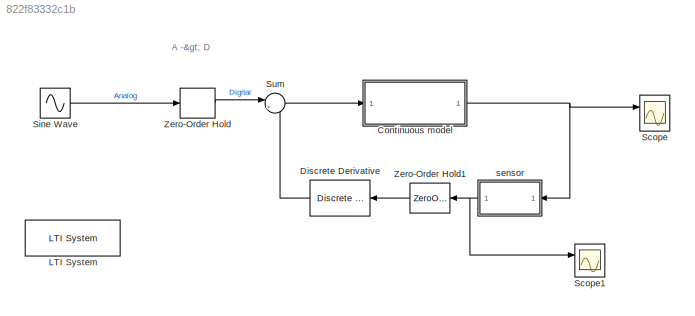
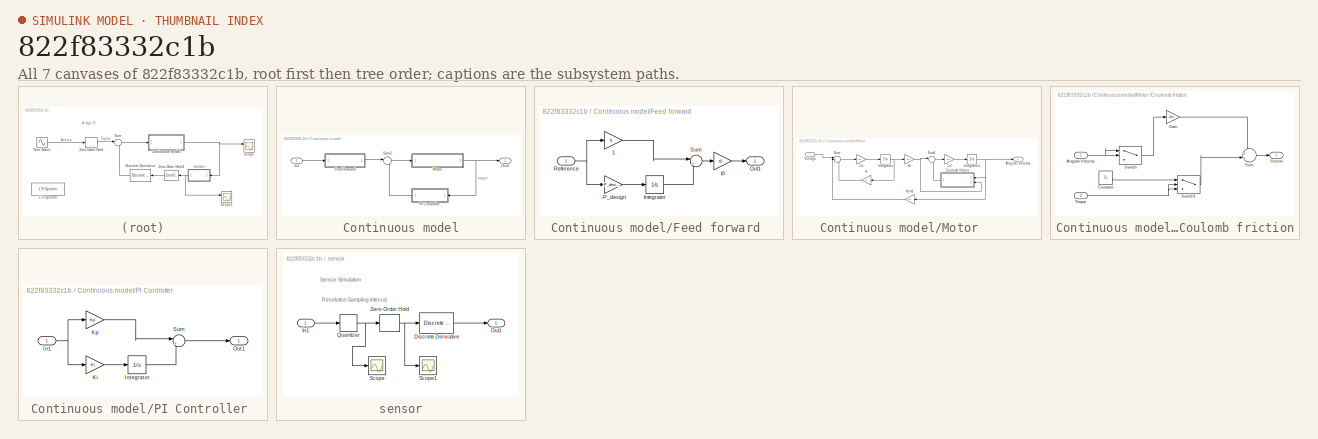
[diagram: thumbnail index - all 7 canvases of the model, root first then tree order]
MODEL slx_822f83332c1b
KIND model
CONFIG AbsTol = auto
CONFIG EnableMultiTasking = off
CONFIG FixedStep = auto
CONFIG MaxStep = auto
CONFIG MinStep = auto
CONFIG RelTol = 1e-3
CONFIG SampleTimeConstraint = Unconstrained
CONFIG Solver = VariableStepAuto
CONFIG SolverName = VariableStepAuto
CONFIG StartTime = 0.0
CONFIG StopTime = 10.0
BLOCK [SubSystem] Continuous model
  Ports = [1, 1]
  RequestExecContextInheritance = off
  Variant = off
BLOCK [SubSystem] Continuous model/Feed forward 
  Ports = [1, 1]
  RequestExecContextInheritance = off
  Variant = off
BLOCK [Gain] Continuous model/Feed forward /-P_design 
  Gain = -P_design
  OutDataTypeStr = Inherit: Inherit via internal rule
  ParamDataTypeStr = Inherit: Inherit via internal rule
  SaturateOnIntegerOverflow = off
BLOCK [Gain] Continuous model/Feed forward /1 
  OutDataTypeStr = Inherit: Inherit via internal rule
  ParamDataTypeStr = Inherit: Inherit via internal rule
  SaturateOnIntegerOverflow = off
BLOCK [Integrator] Continuous model/Feed forward /Integrator
  Ports = [1, 1]
BLOCK [Outport] Continuous model/Feed forward /Out1
  IconDisplay = Port number
BLOCK [Inport] Continuous model/Feed forward /Reference
  IconDisplay = Port number
BLOCK [Sum] Continuous model/Feed forward /Sum
  IconShape = round
  InputSameDT = off
  Inputs = |++
  OutDataTypeStr = Inherit: Inherit via internal rule
  Ports = [2, 1]
  SaturateOnIntegerOverflow = off
BLOCK [Gain] Continuous model/Feed forward /t0
  Gain = t0
  OutDataTypeStr = Inherit: Inherit via internal rule
  ParamDataTypeStr = Inherit: Inherit via internal rule
  SaturateOnIntegerOverflow = off
BLOCK [Inport] Continuous model/In1
  IconDisplay = Port number
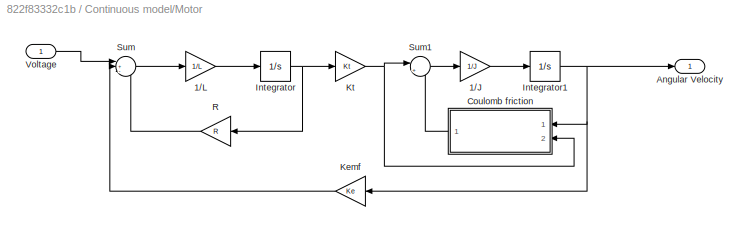
BLOCK [SubSystem] Continuous model/Motor     
  Ports = [1, 1]
  RequestExecContextInheritance = off
  Variant = off
BLOCK [Gain] Continuous model/Motor     /1//J
  Gain = 1/J
  OutDataTypeStr = Inherit: Inherit via internal rule
  ParamDataTypeStr = Inherit: Inherit via internal rule
  SaturateOnIntegerOverflow = off
BLOCK [Gain] Continuous model/Motor     /1//L
  Gain = 1/L
  OutDataTypeStr = Inherit: Inherit via internal rule
  ParamDataTypeStr = Inherit: Inherit via internal rule
  SaturateOnIntegerOverflow = off
BLOCK [Outport] Continuous model/Motor     /Angular Velocity
  IconDisplay = Port number
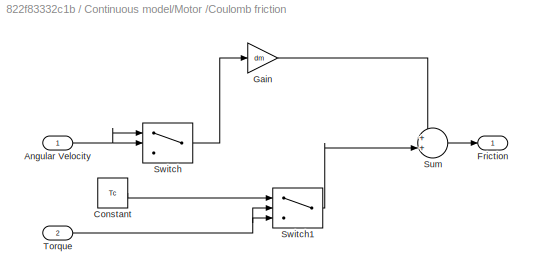
BLOCK [SubSystem] Continuous model/Motor     /Coulomb friction
  Ports = [2, 1]
  RequestExecContextInheritance = off
  Variant = off
BLOCK [Inport] Continuous model/Motor     /Coulomb friction/Angular Velocity
  IconDisplay = Port number
BLOCK [Constant] Continuous model/Motor     /Coulomb friction/Constant
  Value = Tc
BLOCK [Outport] Continuous model/Motor     /Coulomb friction/Friction 
  IconDisplay = Port number
BLOCK [Gain] Continuous model/Motor     /Coulomb friction/Gain
  Gain = dm
  OutDataTypeStr = Inherit: Inherit via internal rule
  ParamDataTypeStr = Inherit: Inherit via internal rule
  SaturateOnIntegerOverflow = off
BLOCK [Sum] Continuous model/Motor     /Coulomb friction/Sum
  IconShape = round
  InputSameDT = off
  Inputs = ++|
  OutDataTypeStr = Inherit: Inherit via internal rule
  Ports = [2, 1]
  SaturateOnIntegerOverflow = off
BLOCK [Switch] Continuous model/Motor     /Coulomb friction/Switch
  Criteria = u2 > Threshold
  InputSameDT = off
  SaturateOnIntegerOverflow = off
  Threshold = 1e-3
BLOCK [Switch] Continuous model/Motor     /Coulomb friction/Switch1
  Criteria = u2 > Threshold
  InputSameDT = off
  SaturateOnIntegerOverflow = off
  Threshold = 1e-3
BLOCK [Inport] Continuous model/Motor     /Coulomb friction/Torque 
  IconDisplay = Port number
  Port = 2
BLOCK [Integrator] Continuous model/Motor     /Integrator
  Ports = [1, 1]
BLOCK [Integrator] Continuous model/Motor     /Integrator1
  Ports = [1, 1]
BLOCK [Gain] Continuous model/Motor     /Kemf
  Gain = Ke
  OutDataTypeStr = Inherit: Inherit via internal rule
  ParamDataTypeStr = Inherit: Inherit via internal rule
  SaturateOnIntegerOverflow = off
BLOCK [Gain] Continuous model/Motor     /Kt 
  Gain = Kt
  OutDataTypeStr = Inherit: Inherit via internal rule
  ParamDataTypeStr = Inherit: Inherit via internal rule
  SaturateOnIntegerOverflow = off
BLOCK [Gain] Continuous model/Motor     /R
  Gain = R
  OutDataTypeStr = Inherit: Inherit via internal rule
  ParamDataTypeStr = Inherit: Inherit via internal rule
  SaturateOnIntegerOverflow = off
BLOCK [Sum] Continuous model/Motor     /Sum
  IconShape = round
  InputSameDT = off
  Inputs = |+--
  OutDataTypeStr = Inherit: Inherit via internal rule
  Ports = [3, 1]
  SaturateOnIntegerOverflow = off
BLOCK [Sum] Continuous model/Motor     /Sum1
  IconShape = round
  InputSameDT = off
  Inputs = |+-
  OutDataTypeStr = Inherit: Inherit via internal rule
  Ports = [2, 1]
  SaturateOnIntegerOverflow = off
BLOCK [Inport] Continuous model/Motor     /Voltage
  IconDisplay = Port number
BLOCK [Outport] Continuous model/Out1
  IconDisplay = Port number
BLOCK [SubSystem] Continuous model/PI Controller 
  Ports = [1, 1]
  RequestExecContextInheritance = off
  Variant = off
BLOCK [Inport] Continuous model/PI Controller /In1
  IconDisplay = Port number
BLOCK [Integrator] Continuous model/PI Controller /Integrator
  Ports = [1, 1]
BLOCK [Gain] Continuous model/PI Controller /Ki 
  Gain = Ki
  OutDataTypeStr = Inherit: Inherit via internal rule
  ParamDataTypeStr = Inherit: Inherit via internal rule
  SaturateOnIntegerOverflow = off
BLOCK [Gain] Continuous model/PI Controller /Kp
  Gain = Kp
  OutDataTypeStr = Inherit: Inherit via internal rule
  ParamDataTypeStr = Inherit: Inherit via internal rule
  SaturateOnIntegerOverflow = off
BLOCK [Outport] Continuous model/PI Controller /Out1
  IconDisplay = Port number
BLOCK [Sum] Continuous model/PI Controller /Sum
  IconShape = round
  InputSameDT = off
  Inputs = |++
  OutDataTypeStr = Inherit: Inherit via internal rule
  Ports = [2, 1]
  SaturateOnIntegerOverflow = off
BLOCK [Sum] Continuous model/Sum1
  IconShape = round
  InputSameDT = off
  Inputs = |+-
  OutDataTypeStr = Inherit: Inherit via internal rule
  Ports = [2, 1]
  SaturateOnIntegerOverflow = off
BLOCK [Reference] Discrete Derivative  REF=simulink/Discrete/Discrete Derivative
  Ports = [1, 1]
  SourceBlock = simulink/Discrete/Discrete Derivative
  SourceProductBaseCode = SL
  SourceProductName = Simulink
  SourceType = Discrete Derivative
BLOCK [Reference] LTI System  REF=cstblocks/LTI System
  Ports = [1, 1]
  SourceBlock = cstblocks/LTI System
  SourceProductBaseCode = CT
  SourceProductName = Control System Toolbox
  SourceType = LTI Block
BLOCK [Scope] Scope
  NumInputPorts = 2
  Ports = [2]
  ScopeSpecificationString = Simulink.scopes.TimeScopeBlockCfg('CurrentConfiguration', extmgr.ConfigurationSet(extmgr.Configuration('Core','General UI',true),extmgr.Configuration('Core','Source UI',true),extmgr.Configuration('Sources','WiredSimulink',true),extmgr.Configuration('Visuals','Time Domain',true,'SerializedDisplays',{struct('MinYLimReal','-20.71032','MaxYLimReal','22.02185','YLabelReal','','MinYLimMag','0.00000','Ma...<+1426ch>
BLOCK [Scope] Scope1
  NumInputPorts = 2
  Ports = [2]
  ScopeSpecificationString = Simulink.scopes.TimeScopeBlockCfg('CurrentConfiguration', extmgr.ConfigurationSet(extmgr.Configuration('Core','General UI',true),extmgr.Configuration('Core','Source UI',true),extmgr.Configuration('Sources','WiredSimulink',true,'DataLoggingVariableName','ScopeData3'),extmgr.Configuration('Visuals','Time Domain',true,'SerializedDisplays',{struct('MinYLimReal','-20.71032','MaxYLimReal','22.02185','YL...<+1464ch>
BLOCK [Sin] Sine Wave
  Amplitude = 20
  Ports = [0, 1]
  SampleTime = 0
BLOCK [Sum] Sum
  IconShape = round
  InputSameDT = off
  Inputs = |+-
  OutDataTypeStr = Inherit: Inherit via internal rule
  Ports = [2, 1]
  SaturateOnIntegerOverflow = off
BLOCK [ZeroOrderHold] Zero-Order Hold
  SampleTime = 0.002
BLOCK [ZeroOrderHold] Zero-Order Hold1
  SampleTime = -1
BLOCK [SubSystem] sensor
  Ports = [1, 1]
  RequestExecContextInheritance = off
  Variant = off
BLOCK [Reference] sensor/Discrete Derivative  REF=simulink/Discrete/Discrete Derivative
  Ports = [1, 1]
  SourceBlock = simulink/Discrete/Discrete Derivative
  SourceProductBaseCode = SL
  SourceProductName = Simulink
  SourceType = Discrete Derivative
BLOCK [Inport] sensor/In1
  IconDisplay = Port number
BLOCK [Outport] sensor/Out1
  IconDisplay = Port number
BLOCK [Quantizer] sensor/Quantizer
  QuantizationInterval = 2*pi/8192
BLOCK [Scope] sensor/Scope
  NumInputPorts = 1
  Ports = [1]
  ScopeSpecificationString = Simulink.scopes.TimeScopeBlockCfg('CurrentConfiguration', extmgr.ConfigurationSet(extmgr.Configuration('Core','General UI',true),extmgr.Configuration('Core','Source UI',true),extmgr.Configuration('Sources','WiredSimulink',true,'DataLoggingLimitDataPoints',true,'DataLoggingSaveFormat','Array','DataLoggingDecimation','1','DataLoggingDecimateData',true,'DataLoggingVariableName','ScopeData1'),extmgr.C...<+898ch>
BLOCK [Scope] sensor/Scope1
  NumInputPorts = 1
  Ports = [1]
  ScopeSpecificationString = Simulink.scopes.TimeScopeBlockCfg('CurrentConfiguration', extmgr.ConfigurationSet(extmgr.Configuration('Core','General UI',true),extmgr.Configuration('Core','Source UI',true),extmgr.Configuration('Sources','WiredSimulink',true,'DataLoggingVariableName','ScopeData2','DataLoggingLimitDataPoints',true,'DataLoggingSaveFormat','Array','DataLoggingDecimation','1','DataLoggingDecimateData',true),extmgr.C...<+900ch>
BLOCK [ZeroOrderHold] sensor/Zero-Order Hold
  SampleTime = 0.01
ANNOTATION (root): A -> D
ANNOTATION sensor: Resolution
ANNOTATION sensor: Sampling interval
ANNOTATION sensor: Sensor Simulation
LINE Continuous model/Feed forward /-P_design :1 -> Continuous model/Feed forward /Integrator:1
LINE Continuous model/Feed forward /1 :1 -> Continuous model/Feed forward /Sum:1
LINE Continuous model/Feed forward /Integrator:1 -> Continuous model/Feed forward /Sum:2
NET Continuous model/Feed forward /Reference:1 -> Continuous model/Feed forward /-P_design :1, Continuous model/Feed forward /1 :1
LINE Continuous model/Feed forward /Sum:1 -> Continuous model/Feed forward /t0:1
LINE Continuous model/Feed forward /t0:1 -> Continuous model/Feed forward /Out1:1
LINE Continuous model/Feed forward :1 -> Continuous model/Sum1:1
LINE Continuous model/In1:1 -> Continuous model/Feed forward :1
LINE Continuous model/Motor     /1//J:1 -> Continuous model/Motor     /Integrator1:1
LINE Continuous model/Motor     /1//L:1 -> Continuous model/Motor     /Integrator:1
NET Continuous model/Motor     /Coulomb friction/Angular Velocity:1 -> Continuous model/Motor     /Coulomb friction/Switch:1, Continuous model/Motor     /Coulomb friction/Switch:2
LINE Continuous model/Motor     /Coulomb friction/Constant:1 -> Continuous model/Motor     /Coulomb friction/Switch1:1
LINE Continuous model/Motor     /Coulomb friction/Gain:1 -> Continuous model/Motor     /Coulomb friction/Sum:1
LINE Continuous model/Motor     /Coulomb friction/Sum:1 -> Continuous model/Motor     /Coulomb friction/Friction :1
LINE Continuous model/Motor     /Coulomb friction/Switch1:1 -> Continuous model/Motor     /Coulomb friction/Sum:2
LINE Continuous model/Motor     /Coulomb friction/Switch:1 -> Continuous model/Motor     /Coulomb friction/Gain:1
NET Continuous model/Motor     /Coulomb friction/Torque :1 -> Continuous model/Motor     /Coulomb friction/Switch1:2, Continuous model/Motor     /Coulomb friction/Switch1:3
LINE Continuous model/Motor     /Coulomb friction:1 -> Continuous model/Motor     /Sum1:2
NET Continuous model/Motor     /Integrator1:1 -> Continuous model/Motor     /Angular Velocity:1, Continuous model/Motor     /Coulomb friction:1, Continuous model/Motor     /Kemf:1
NET Continuous model/Motor     /Integrator:1 -> Continuous model/Motor     /Kt :1, Continuous model/Motor     /R:1
LINE Continuous model/Motor     /Kemf:1 -> Continuous model/Motor     /Sum:2
NET Continuous model/Motor     /Kt :1 -> Continuous model/Motor     /Coulomb friction:2, Continuous model/Motor     /Sum1:1
LINE Continuous model/Motor     /R:1 -> Continuous model/Motor     /Sum:3
LINE Continuous model/Motor     /Sum1:1 -> Continuous model/Motor     /1//J:1
LINE Continuous model/Motor     /Sum:1 -> Continuous model/Motor     /1//L:1
LINE Continuous model/Motor     /Voltage:1 -> Continuous model/Motor     /Sum:1
NET Continuous model/Motor     :1 -> Continuous model/Out1:1, Continuous model/PI Controller :1
NET Continuous model/PI Controller /In1:1 -> Continuous model/PI Controller /Ki :1, Continuous model/PI Controller /Kp:1
LINE Continuous model/PI Controller /Integrator:1 -> Continuous model/PI Controller /Sum:2
LINE Continuous model/PI Controller /Ki :1 -> Continuous model/PI Controller /Integrator:1
LINE Continuous model/PI Controller /Kp:1 -> Continuous model/PI Controller /Sum:1
LINE Continuous model/PI Controller /Sum:1 -> Continuous model/PI Controller /Out1:1
LINE Continuous model/PI Controller :1 -> Continuous model/Sum1:2
LINE Continuous model/Sum1:1 -> Continuous model/Motor     :1
NET Continuous model:1 -> Scope:1, sensor:1
LINE Discrete Derivative:1 -> Sum:2
LINE Sine Wave:1 -> Zero-Order Hold:1
LINE Sum:1 -> Continuous model:1
LINE Zero-Order Hold1:1 -> Discrete Derivative:1
LINE Zero-Order Hold:1 -> Sum:1
LINE sensor/Discrete Derivative:1 -> sensor/Out1:1
LINE sensor/In1:1 -> sensor/Quantizer:1
NET sensor/Quantizer:1 -> sensor/Scope:1, sensor/Zero-Order Hold:1
NET sensor/Zero-Order Hold:1 -> sensor/Discrete Derivative:1, sensor/Scope1:1
NET sensor:1 -> Scope1:1, Zero-Order Hold1:1
note: NET lines group one-source signal fan-out (src -> all destinations, sorted); 1:1 wires keep LINE
